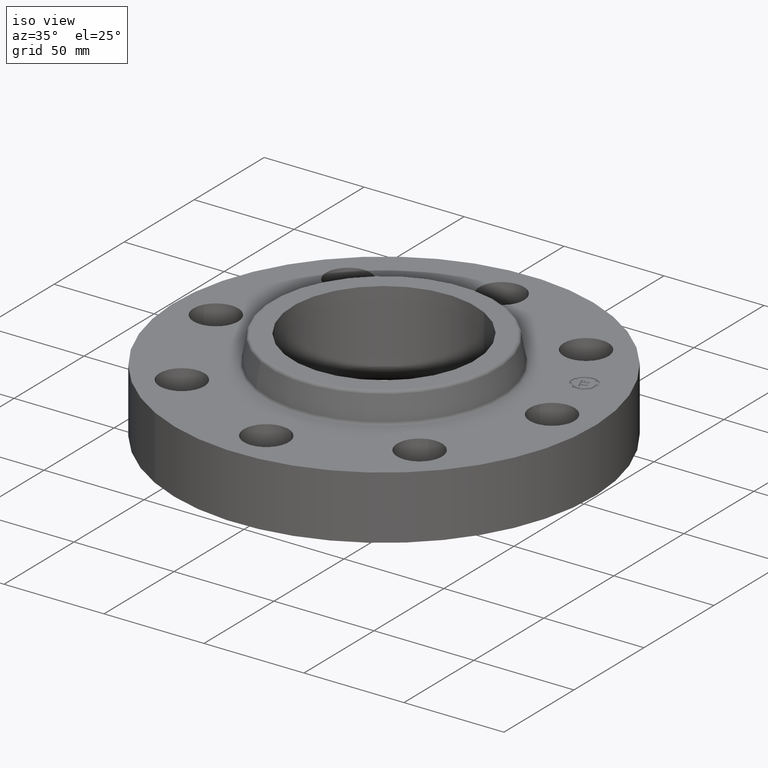
[diagram: clean part render]
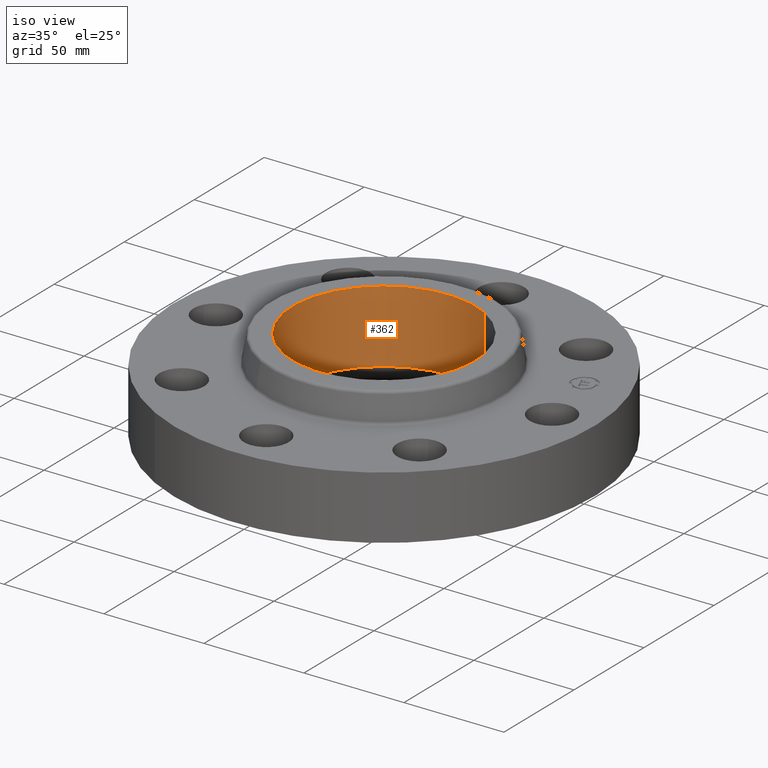
[diagram: same view with one face highlighted and labeled with its STEP entity id]
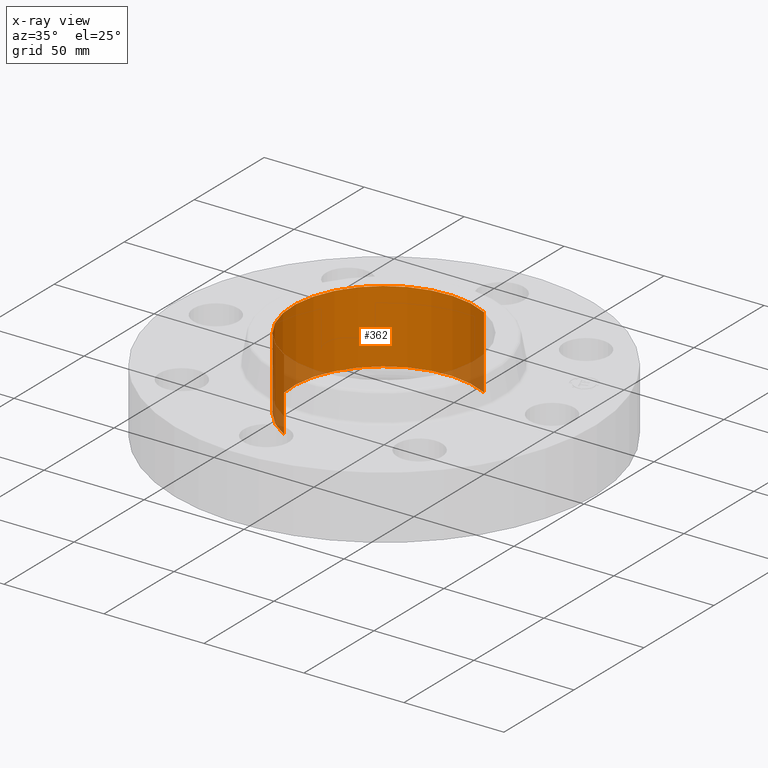
[diagram: x-ray of the same camera — body ghosted, the highlighted face saturated]
A machine part, iso view. The second image highlights one B-rep face of the part: STEP entity #362.
The next image is the same camera in x-ray: the body ghosted, the highlighted face saturated — about 9% of this face is hidden behind the body in this view.
In plain terms, the highlighted cylindrical surface (partial cylindrical patch) has radius 45.72 mm, axis along (0, 0, -1).
Its self-contained STEP definition (entity closure, byte-faithful):
#303=AXIS2_PLACEMENT_3D('Circle Axis2P3D',#301,#302,$) ;
#323=AXIS2_PLACEMENT_3D('Cylinder Axis2P3D',#320,#321,#322) ;
#353=AXIS2_PLACEMENT_3D('Circle Axis2P3D',#351,#352,$) ;
#301=CARTESIAN_POINT('Axis2P3D Location',(0.,0.,1.81000000001)) ;
#305=CARTESIAN_POINT('Vertex',(-0.862965969491,-1.57964861141,1.81000000001)) ;
#307=CARTESIAN_POINT('Vertex',(0.862965969491,1.57964861141,1.81000000001)) ;
#320=CARTESIAN_POINT('Axis2P3D Location',(0.,0.,0.905000000006)) ;
#325=CARTESIAN_POINT('Line Origine',(0.862965969491,1.57964861141,1.095)) ;
#329=CARTESIAN_POINT('Vertex',(0.862965969491,1.57964861141,0.380000000002)) ;
#336=CARTESIAN_POINT('Vertex',(-0.862965969491,-1.57964861141,0.380000000002)) ;
#339=CARTESIAN_POINT('Line Origine',(-0.862965969491,-1.57964861141,1.095)) ;
#351=CARTESIAN_POINT('Axis2P3D Location',(0.,0.,0.380000000002)) ;
#302=DIRECTION('Axis2P3D Direction',(0.,0.,-0.0393700787402)) ;
#321=DIRECTION('Axis2P3D Direction',(0.,0.,-0.0393700787402)) ;
#322=DIRECTION('Axis2P3D XDirection',(-0.0188750212049,-0.0345504945626,0.)) ;
#326=DIRECTION('Vector Direction',(0.,0.,-0.0393700787402)) ;
#340=DIRECTION('Vector Direction',(0.,0.,-0.0393700787402)) ;
#352=DIRECTION('Axis2P3D Direction',(0.,0.,-0.0393700787402)) ;
#327=VECTOR('Line Direction',#326,0.0393700787402) ;
#341=VECTOR('Line Direction',#340,0.0393700787402) ;
#357=ORIENTED_EDGE('',*,*,#309,.F.) ;
#358=ORIENTED_EDGE('',*,*,#343,.T.) ;
#359=ORIENTED_EDGE('',*,*,#355,.T.) ;
#360=ORIENTED_EDGE('',*,*,#331,.F.) ;
#362=ADVANCED_FACE('PartBody',(#361),#324,.F.) ;
#304=CIRCLE('generated circle',#303,1.80000000001) ;
#354=CIRCLE('generated circle',#353,1.80000000001) ;
#324=CYLINDRICAL_SURFACE('generated cylinder',#323,1.80000000001) ;
#309=EDGE_CURVE('',#306,#308,#304,.T.) ;
#331=EDGE_CURVE('',#308,#330,#328,.T.) ;
#343=EDGE_CURVE('',#306,#337,#342,.T.) ;
#355=EDGE_CURVE('',#337,#330,#354,.T.) ;
#356=EDGE_LOOP('',(#357,#358,#359,#360)) ;
#361=FACE_OUTER_BOUND('',#356,.T.) ;
#328=LINE('Line',#325,#327) ;
#342=LINE('Line',#339,#341) ;
#306=VERTEX_POINT('',#305) ;
#308=VERTEX_POINT('',#307) ;
#330=VERTEX_POINT('',#329) ;
#337=VERTEX_POINT('',#336) ;